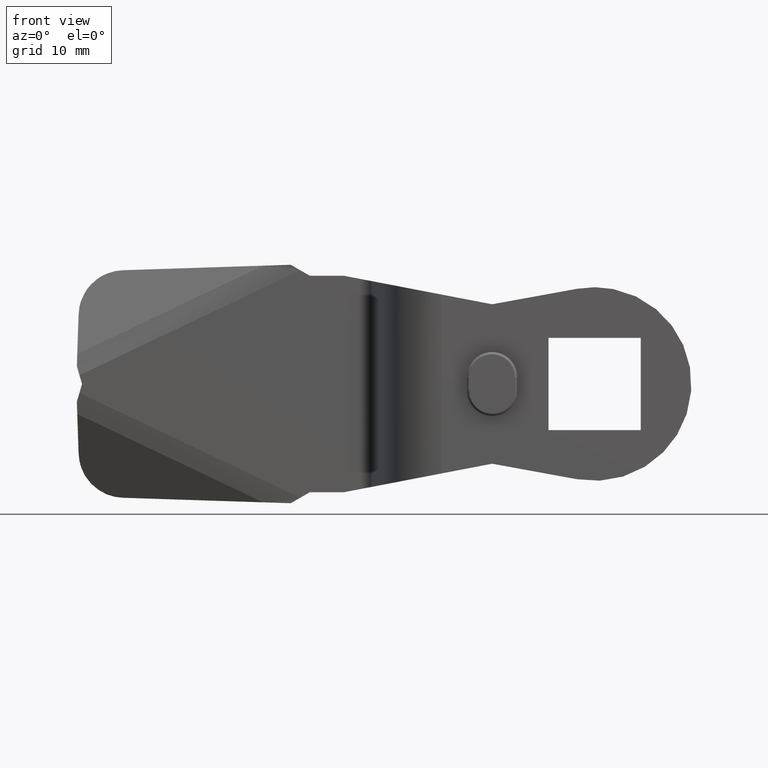
[diagram: clean part render]
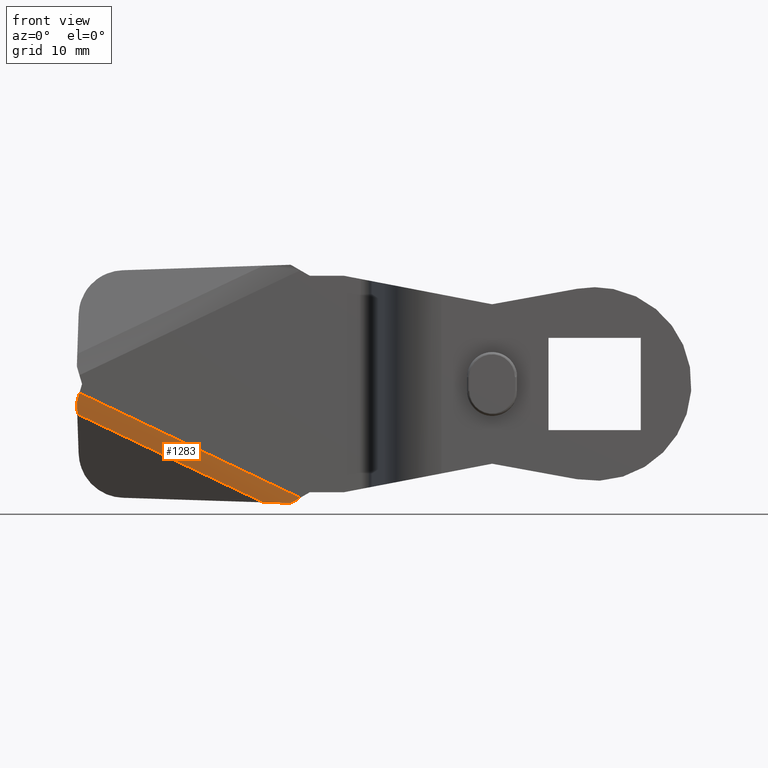
[diagram: same view with one face highlighted and labeled with its STEP entity id]
A machine part, front view. The second image highlights one B-rep face of the part: STEP entity #1283.
In plain terms, the highlighted face is a freeform B-spline surface patch.
Its self-contained STEP definition (entity closure, byte-faithful):
#1193=CARTESIAN_POINT('',(-46.507197222706651,-3.548282229636058,-2.211238204088800));
#1194=CARTESIAN_POINT('',(-26.134075160122261,-3.548282229636058,-11.888471183813857));
#1195=CARTESIAN_POINT('',(-46.116432591216395,-4.022240439074980,-1.388575822003864));
#1196=CARTESIAN_POINT('',(-25.743310528632016,-4.022240439074980,-11.065808801728915));
#1197=CARTESIAN_POINT('',(-45.676034372932065,-3.998972876619834,-0.461421678247124));
#1198=CARTESIAN_POINT('',(-25.302912310347683,-3.998972876619834,-10.138654657972175));
#1206=(BOUNDED_SURFACE()B_SPLINE_SURFACE(1,2,((#1193,#1195,#1197),(#1194,#1196,#1198)),.UNSPECIFIED.,.F.,.F.,.U.)B_SPLINE_SURFACE_WITH_KNOTS((2,2),(3,3),(0.0,22.554665608712561),(0.0,2.020640996397331),.UNSPECIFIED.)GEOMETRIC_REPRESENTATION_ITEM()RATIONAL_B_SPLINE_SURFACE(((0.997532546184918,0.963878778805393,0.992719970057956),(0.997532546184918,0.963878778805393,0.992719970057956)))REPRESENTATION_ITEM('')SURFACE());
#1207=CARTESIAN_POINT('',(-45.422700162126702,-3.589033668687000,-2.637240661485515));
#1208=VERTEX_POINT('',#1207);
#1209=CARTESIAN_POINT('',(-45.460283177382401,-3.919693638437140,-1.547154255358015));
#1210=VERTEX_POINT('',#1209);
#1211=CARTESIAN_POINT('',(-45.422700162126667,-3.589033668686999,-2.637240661485515));
#1212=CARTESIAN_POINT('',(-45.440664152727827,-3.816827052877726,-2.116199392686061));
#1213=CARTESIAN_POINT('',(-45.460283177382401,-3.919693638437140,-1.547154255358015));
#1221=(BOUNDED_CURVE()B_SPLINE_CURVE(2,(#1211,#1212,#1213),.UNSPECIFIED.,.F.,.U.)CURVE()GEOMETRIC_REPRESENTATION_ITEM()QUASI_UNIFORM_CURVE()RATIONAL_B_SPLINE_CURVE((1.0,0.991783610846503,1.0))REPRESENTATION_ITEM(''));
#1222=EDGE_CURVE('',#1208,#1210,#1221,.T.);
#1223=ORIENTED_EDGE('',*,*,#1222,.F.);
#1224=CARTESIAN_POINT('',(-29.101330966022299,-3.589033668686995,-10.389891029633100));
#1225=VERTEX_POINT('',#1224);
#1226=CARTESIAN_POINT('',(-29.101330966022299,-3.589033668686995,-10.389891029633100));
#1227=CARTESIAN_POINT('',(-45.422700162126702,-3.589033668687000,-2.637240661485515));
#1228=QUASI_UNIFORM_CURVE('',1,(#1226,#1227),.UNSPECIFIED.,.F.,.U.);
#1229=EDGE_CURVE('',#1225,#1208,#1228,.T.);
#1230=ORIENTED_EDGE('',*,*,#1229,.F.);
#1231=CARTESIAN_POINT('',(-26.677422310739399,-3.919693638437140,-10.469013167013200));
#1232=VERTEX_POINT('',#1231);
#1233=CARTESIAN_POINT('',(-26.677422310739399,-3.919693638437140,-10.469013167013200));
#1234=CARTESIAN_POINT('',(-27.942747174460663,-3.816827052938306,-10.427709957224490));
#1235=CARTESIAN_POINT('',(-29.101330966022260,-3.589033668686995,-10.389891029633089));
#1243=(BOUNDED_CURVE()B_SPLINE_CURVE(2,(#1233,#1234,#1235),.UNSPECIFIED.,.F.,.U.)CURVE()GEOMETRIC_REPRESENTATION_ITEM()QUASI_UNIFORM_CURVE()RATIONAL_B_SPLINE_CURVE((1.0,0.991783610842216,1.0))REPRESENTATION_ITEM(''));
#1244=EDGE_CURVE('',#1232,#1225,#1243,.T.);
#1245=ORIENTED_EDGE('',*,*,#1244,.F.);
#1246=CARTESIAN_POINT('',(-25.838711795582501,-4.000000189989685,-9.984506835978550));
#1247=VERTEX_POINT('',#1246);
#1248=CARTESIAN_POINT('',(-25.838711795582501,-4.000000189989684,-9.984506835978550));
#1249=CARTESIAN_POINT('',(-26.262319361006949,-4.000000189989684,-10.229216474898395));
#1250=CARTESIAN_POINT('',(-26.677422310739399,-3.919693638437140,-10.469013167013200));
#1258=(BOUNDED_CURVE()B_SPLINE_CURVE(2,(#1248,#1249,#1250),.UNSPECIFIED.,.F.,.U.)CURVE()GEOMETRIC_REPRESENTATION_ITEM()QUASI_UNIFORM_CURVE()RATIONAL_B_SPLINE_CURVE((1.0,0.994968180929699,1.0))REPRESENTATION_ITEM(''));
#1259=EDGE_CURVE('',#1247,#1232,#1258,.T.);
#1260=ORIENTED_EDGE('',*,*,#1259,.F.);
#1261=CARTESIAN_POINT('',(-45.230142670142307,-4.000000189989685,-0.773577170565086));
#1262=VERTEX_POINT('',#1261);
#1263=CARTESIAN_POINT('',(-45.230142670142307,-4.000000189989685,-0.773577170565086));
#1264=CARTESIAN_POINT('',(-25.838711795582501,-4.000000189989685,-9.984506835978550));
#1265=QUASI_UNIFORM_CURVE('',1,(#1263,#1264),.UNSPECIFIED.,.F.,.U.);
#1266=EDGE_CURVE('',#1262,#1247,#1265,.T.);
#1267=ORIENTED_EDGE('',*,*,#1266,.F.);
#1268=CARTESIAN_POINT('',(-45.460283177382401,-3.919693638437140,-1.547154255358015));
#1269=CARTESIAN_POINT('',(-45.346379748668184,-4.000000189989685,-1.164287790912662));
#1270=CARTESIAN_POINT('',(-45.230142670142307,-4.000000189989684,-0.773577170565087));
#1278=(BOUNDED_CURVE()B_SPLINE_CURVE(2,(#1268,#1269,#1270),.UNSPECIFIED.,.F.,.U.)CURVE()GEOMETRIC_REPRESENTATION_ITEM()QUASI_UNIFORM_CURVE()RATIONAL_B_SPLINE_CURVE((1.0,0.994968180926331,1.0))REPRESENTATION_ITEM(''));
#1279=EDGE_CURVE('',#1210,#1262,#1278,.T.);
#1280=ORIENTED_EDGE('',*,*,#1279,.F.);
#1281=EDGE_LOOP('',(#1223,#1230,#1245,#1260,#1267,#1280));
#1282=FACE_OUTER_BOUND('',#1281,.T.);
#1283=ADVANCED_FACE('',(#1282),#1206,.T.);